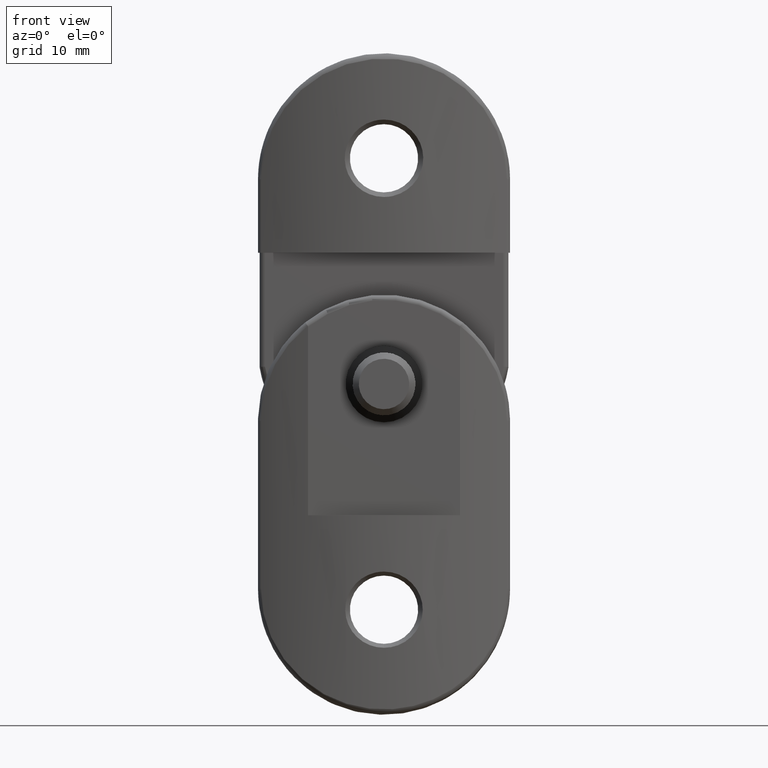
[diagram: clean part render]
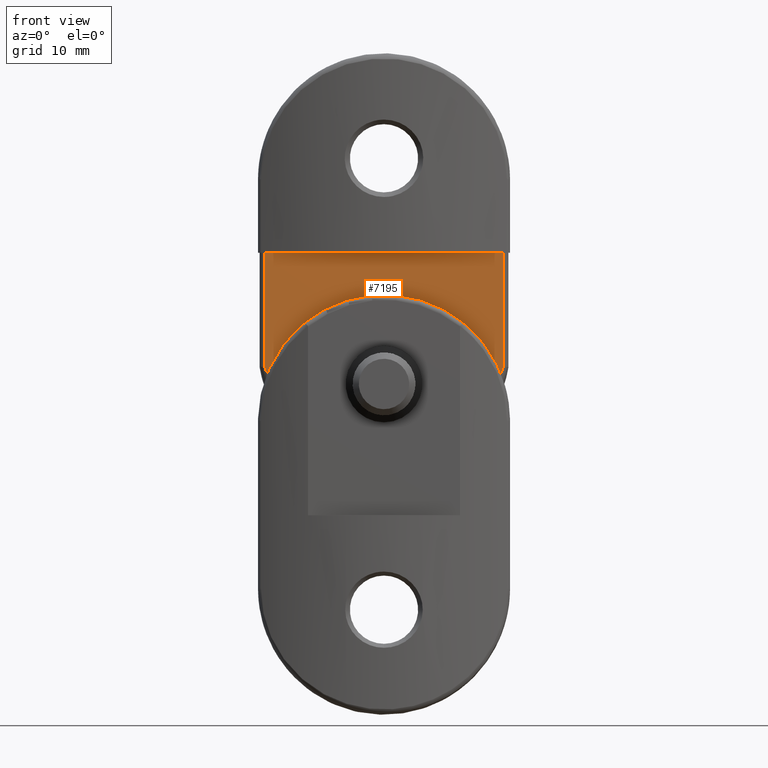
[diagram: same view with one face highlighted and labeled with its STEP entity id]
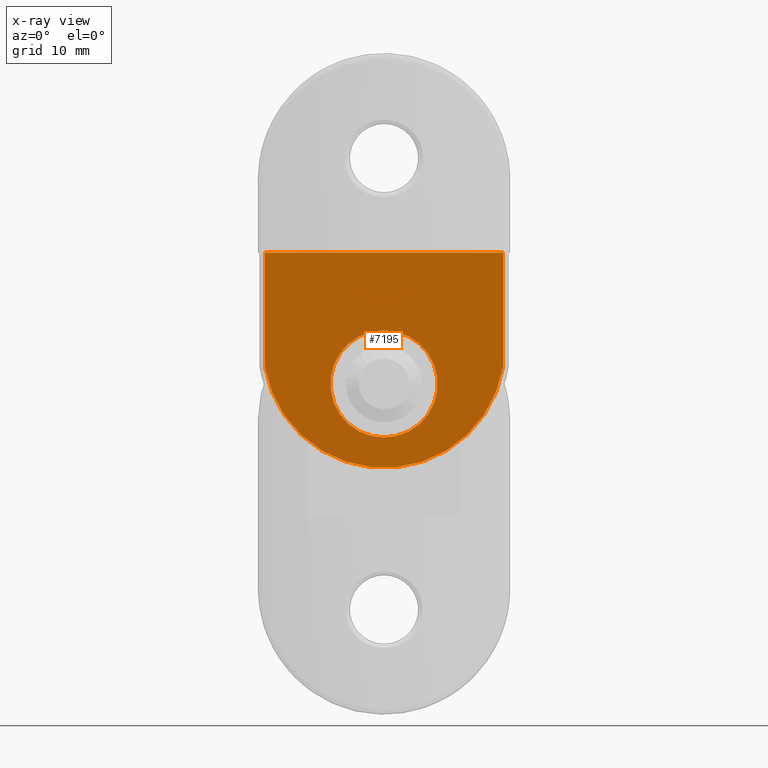
[diagram: x-ray of the same camera — body ghosted, the highlighted face saturated]
A machine part, front view. The second image highlights one B-rep face of the part: STEP entity #7195.
The next image is the same camera in x-ray: the body ghosted, the highlighted face saturated — about 0% of this face is hidden behind the body in this view.
In plain terms, the highlighted planar face has unit normal (0, 1, 0).
Its self-contained STEP definition (entity closure, byte-faithful):
#585 = ORIENTED_EDGE ( 'NONE', *, *, #18486, .T. ) ;
#815 = CARTESIAN_POINT ( 'NONE',  ( 11.35166661860985471, 3.499999999999996003, -10.84110428274411575 ) ) ;
#1066 = ORIENTED_EDGE ( 'NONE', *, *, #19107, .T. ) ;
#1078 = DIRECTION ( 'NONE',  ( 0.000000000000000000, 0.000000000000000000, 1.000000000000000000 ) ) ;
#1081 = CARTESIAN_POINT ( 'NONE',  ( -11.35166661860986004, 3.499999999999996003, -10.12080611566554289 ) ) ;
#1337 = CIRCLE ( 'NONE', #9014, 11.50000000000000000 ) ;
#1542 = DIRECTION ( 'NONE',  ( 0.000000000000000000, -0.000000000000000000, 1.000000000000000000 ) ) ;
#1618 = VERTEX_POINT ( 'NONE', #2699 ) ;
#1788 = AXIS2_PLACEMENT_3D ( 'NONE', #4542, #16361, #11258 ) ;
#2435 = DIRECTION ( 'NONE',  ( 0.000000000000000000, 1.000000000000000000, 0.000000000000000000 ) ) ;
#2699 = CARTESIAN_POINT ( 'NONE',  ( -11.35166661860985116, 3.499999999999996003, 0.000000000000000000 ) ) ;
#3427 = AXIS2_PLACEMENT_3D ( 'NONE', #19691, #2435, #21106 ) ;
#4521 = CARTESIAN_POINT ( 'NONE',  ( 11.94754341490695815, 3.499999999999996003, 0.000000000000000000 ) ) ;
#4542 = CARTESIAN_POINT ( 'NONE',  ( 11.94754341490695815, 3.499999999999996003, -21.00000000000000000 ) ) ;
#4818 = CIRCLE ( 'NONE', #3427, 5.100000000000008527 ) ;
#5045 = FACE_BOUND ( 'NONE', #10275, .T. ) ;
#5128 = VERTEX_POINT ( 'NONE', #7158 ) ;
#5330 = AXIS2_PLACEMENT_3D ( 'NONE', #8864, #12287, #15632 ) ;
#6134 = VECTOR ( 'NONE', #12871, 1000.000000000000000 ) ;
#7158 = CARTESIAN_POINT ( 'NONE',  ( 6.858022075225180524E-16, 3.499999999999996003, -17.60000000000000497 ) ) ;
#7195 = ADVANCED_FACE ( 'NONE', ( #5045, #21434 ), #9445, .F. ) ;
#7259 = ORIENTED_EDGE ( 'NONE', *, *, #13411, .T. ) ;
#7485 = LINE ( 'NONE', #4521, #20419 ) ;
#7746 = VERTEX_POINT ( 'NONE', #815 ) ;
#7808 = DIRECTION ( 'NONE',  ( -0.000000000000000000, -1.000000000000000000, -0.000000000000000000 ) ) ;
#7811 = DIRECTION ( 'NONE',  ( -1.000000000000000000, 0.000000000000000000, 0.000000000000000000 ) ) ;
#7878 = CARTESIAN_POINT ( 'NONE',  ( 0.000000000000000000, 3.499999999999996003, -9.000000000000001776 ) ) ;
#8603 = VERTEX_POINT ( 'NONE', #10941 ) ;
#8864 = CARTESIAN_POINT ( 'NONE',  ( 0.000000000000000000, 3.499999999999996003, -12.49999999999999467 ) ) ;
#9014 = AXIS2_PLACEMENT_3D ( 'NONE', #7878, #7808, #1078 ) ;
#9445 = PLANE ( 'NONE',  #1788 ) ;
#10206 = EDGE_LOOP ( 'NONE', ( #1066, #17051, #585, #7259 ) ) ;
#10275 = EDGE_LOOP ( 'NONE', ( #18797, #18103 ) ) ;
#10630 = LINE ( 'NONE', #1081, #6134 ) ;
#10941 = CARTESIAN_POINT ( 'NONE',  ( 0.000000000000000000, 3.499999999999996003, -7.399999999999987033 ) ) ;
#11119 = VERTEX_POINT ( 'NONE', #21311 ) ;
#11258 = DIRECTION ( 'NONE',  ( 0.000000000000000000, -0.000000000000000000, 1.000000000000000000 ) ) ;
#12287 = DIRECTION ( 'NONE',  ( 0.000000000000000000, 1.000000000000000000, 0.000000000000000000 ) ) ;
#12871 = DIRECTION ( 'NONE',  ( 0.000000000000000000, -0.000000000000000000, -1.000000000000000000 ) ) ;
#13411 = EDGE_CURVE ( 'NONE', #7746, #21052, #20776, .T. ) ;
#14238 = CARTESIAN_POINT ( 'NONE',  ( 11.35166661860985471, 3.499999999999996003, 0.000000000000000000 ) ) ;
#15226 = VECTOR ( 'NONE', #1542, 1000.000000000000000 ) ;
#15632 = DIRECTION ( 'NONE',  ( 0.000000000000000000, 0.000000000000000000, 1.000000000000000000 ) ) ;
#16361 = DIRECTION ( 'NONE',  ( 0.000000000000000000, 1.000000000000000000, 0.000000000000000000 ) ) ;
#16897 = EDGE_CURVE ( 'NONE', #8603, #5128, #4818, .T. ) ;
#17051 = ORIENTED_EDGE ( 'NONE', *, *, #19036, .T. ) ;
#17933 = CIRCLE ( 'NONE', #5330, 5.100000000000008527 ) ;
#18103 = ORIENTED_EDGE ( 'NONE', *, *, #20822, .T. ) ;
#18486 = EDGE_CURVE ( 'NONE', #11119, #7746, #1337, .T. ) ;
#18797 = ORIENTED_EDGE ( 'NONE', *, *, #16897, .T. ) ;
#18829 = CARTESIAN_POINT ( 'NONE',  ( 11.35166661860985471, 3.499999999999996003, -1.387778780781445676E-14 ) ) ;
#19036 = EDGE_CURVE ( 'NONE', #1618, #11119, #10630, .T. ) ;
#19107 = EDGE_CURVE ( 'NONE', #21052, #1618, #7485, .T. ) ;
#19691 = CARTESIAN_POINT ( 'NONE',  ( 0.000000000000000000, 3.499999999999996003, -12.49999999999999467 ) ) ;
#20419 = VECTOR ( 'NONE', #7811, 1000.000000000000000 ) ;
#20776 = LINE ( 'NONE', #18829, #15226 ) ;
#20822 = EDGE_CURVE ( 'NONE', #5128, #8603, #17933, .T. ) ;
#21052 = VERTEX_POINT ( 'NONE', #14238 ) ;
#21106 = DIRECTION ( 'NONE',  ( 0.000000000000000000, 0.000000000000000000, 1.000000000000000000 ) ) ;
#21311 = CARTESIAN_POINT ( 'NONE',  ( -11.35166661860986004, 3.499999999999996003, -10.84110428274407845 ) ) ;
#21434 = FACE_OUTER_BOUND ( 'NONE', #10206, .T. ) ;